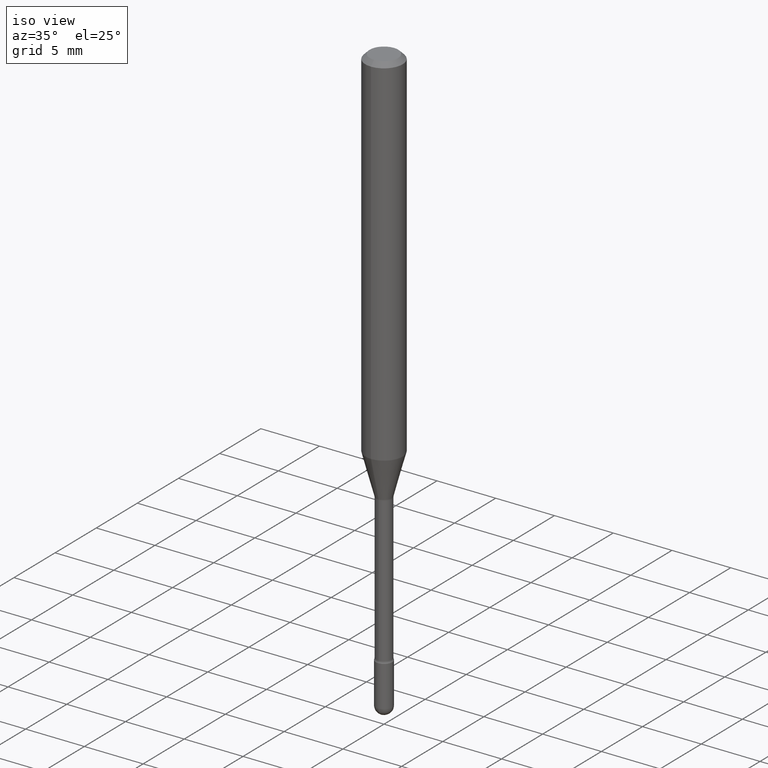
[diagram: clean part render]
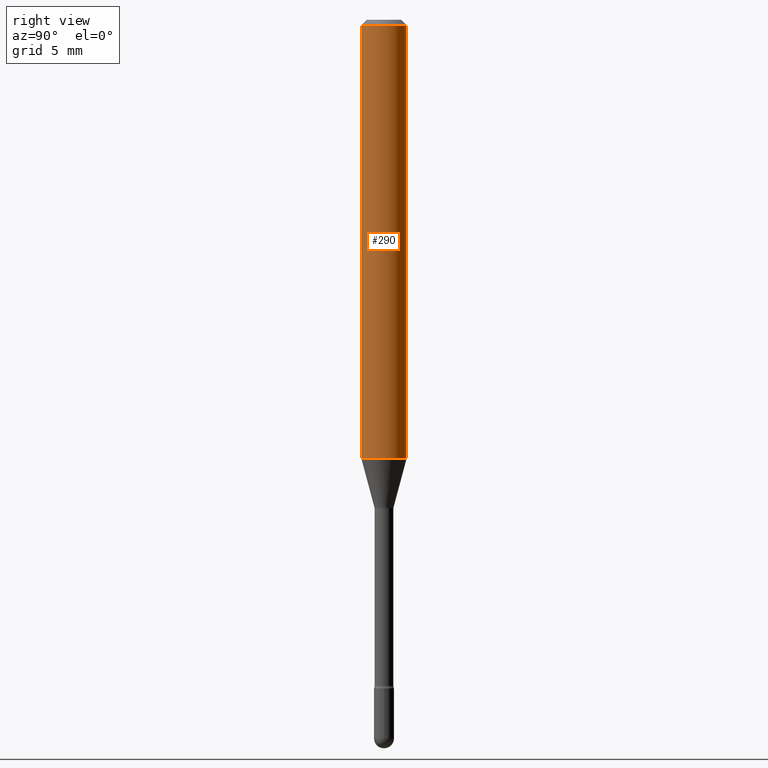
[diagram: tour spotlight — one face highlighted and labeled with its STEP entity id]
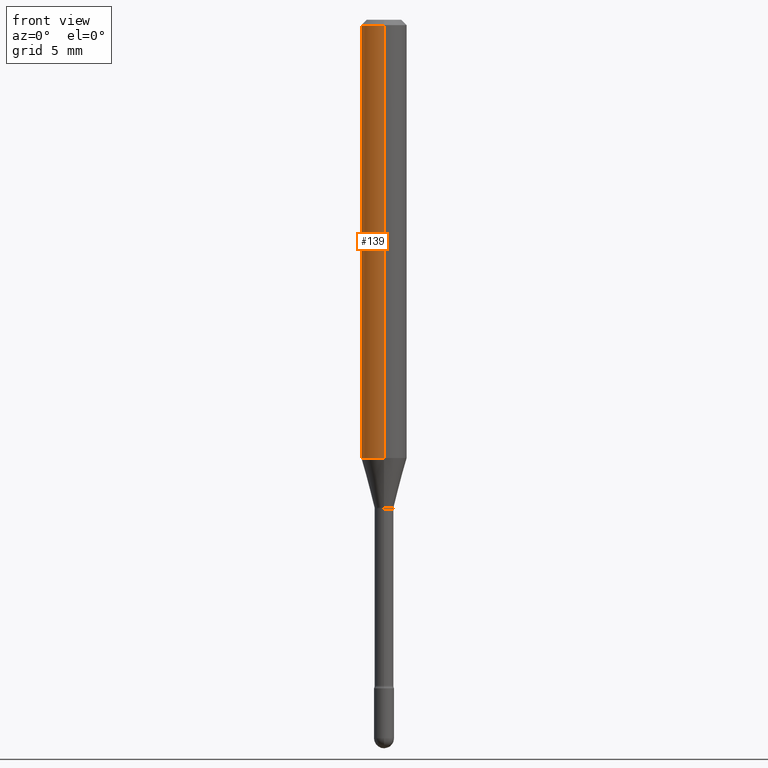
[diagram: tour spotlight — one face highlighted and labeled with its STEP entity id]
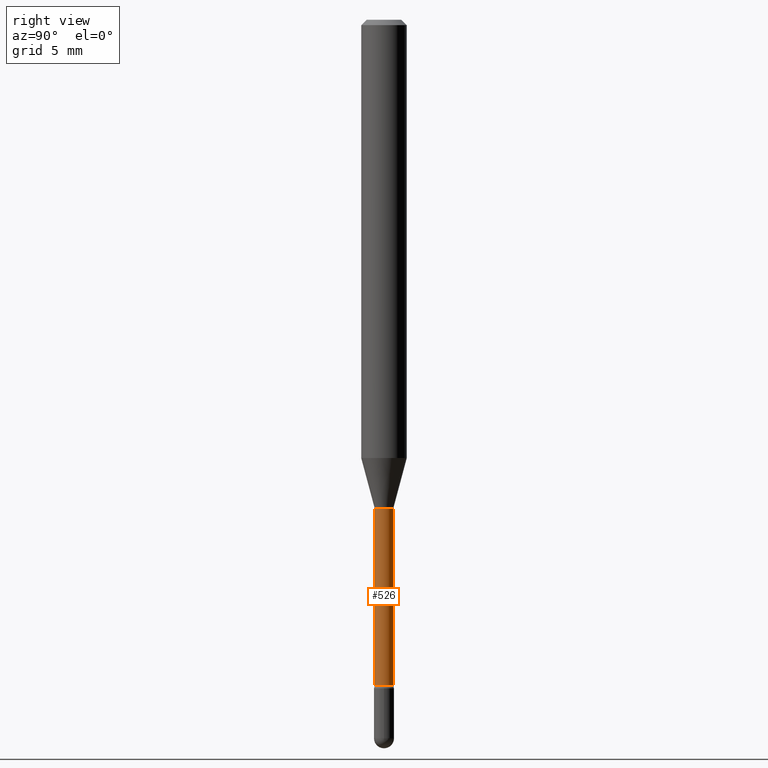
[diagram: tour spotlight — one face highlighted and labeled with its STEP entity id]
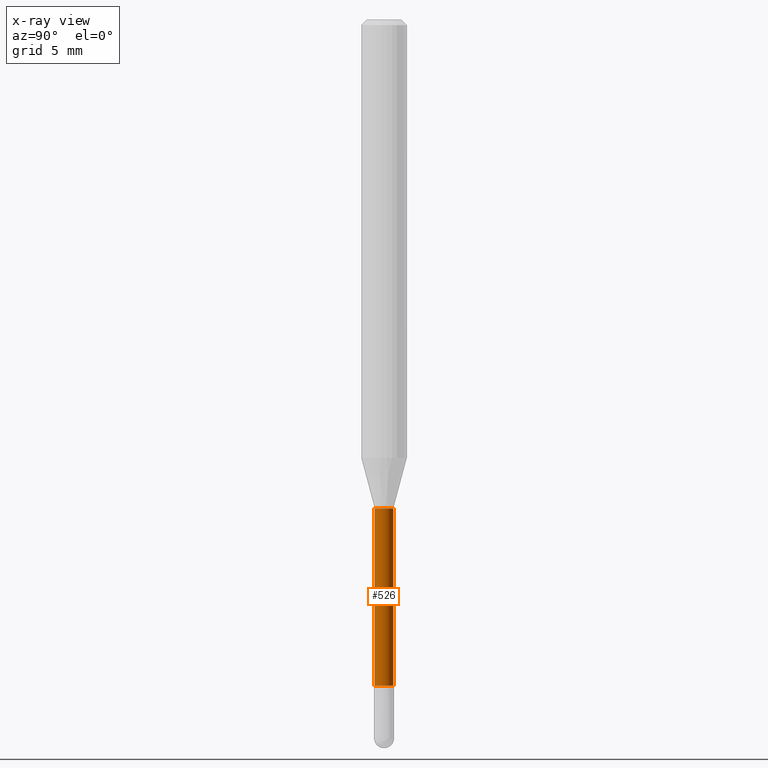
[diagram: x-ray of the same camera — body ghosted, this tour face saturated]
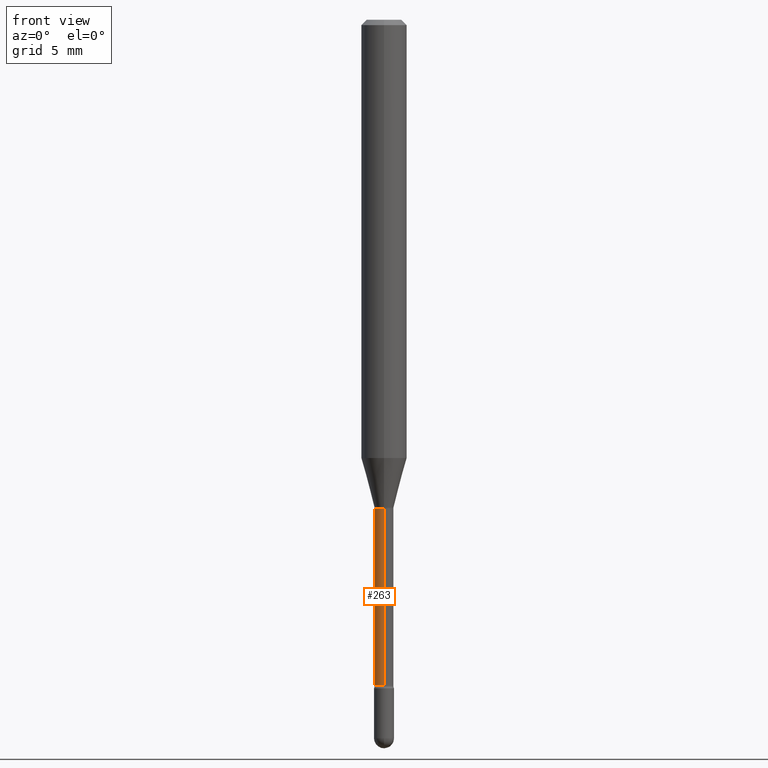
[diagram: tour spotlight — one face highlighted and labeled with its STEP entity id]
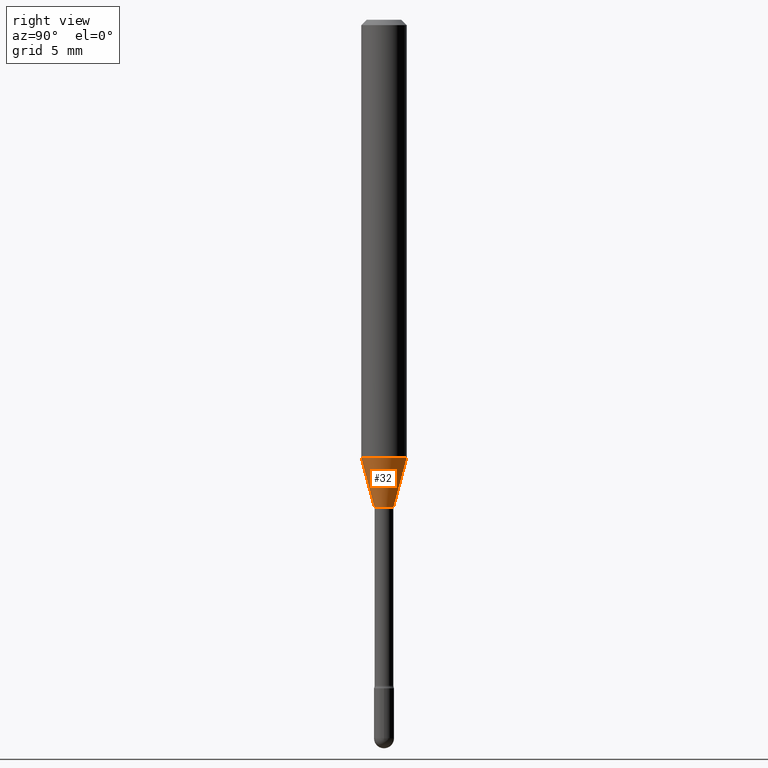
[diagram: tour spotlight — one face highlighted and labeled with its STEP entity id]
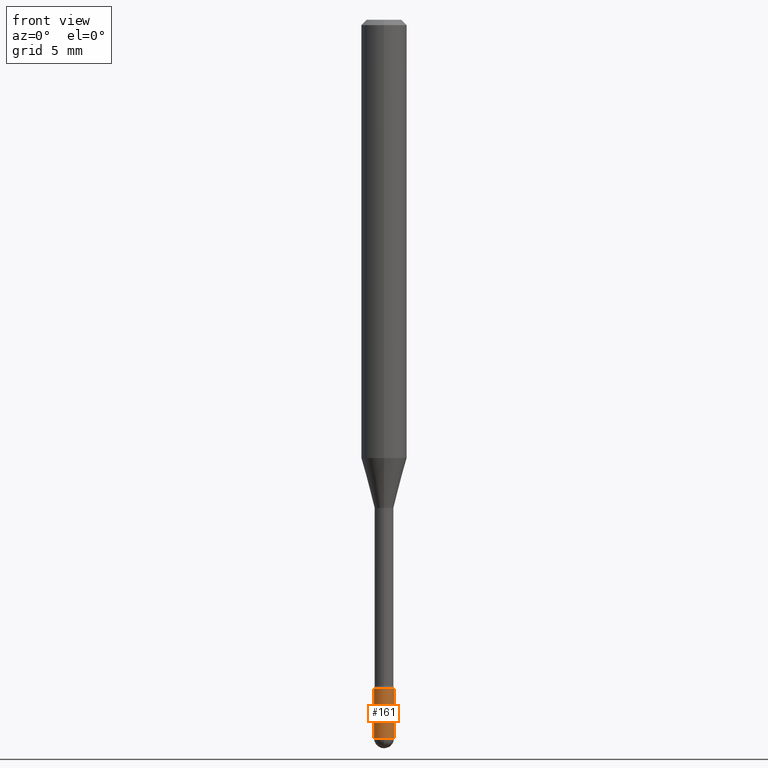
[diagram: tour spotlight — one face highlighted and labeled with its STEP entity id]
A machine part: a face-by-face anatomy tour. The part has 19 B-rep faces; the first image is the clean iso view, then the 6 largest visible faces are spotlighted one at a time (largest first), each with its STEP entity span.

Face 1 — right view, entity #290. In plain terms, the highlighted cylindrical surface (edge-blend (fillet) strip) has radius 1.5875 mm, axis along (-0, 0, 1).
Definition (entity closure, byte-faithful):
#4 = VECTOR ( 'NONE', #497, 39.37007874015748143 ) ;
#5 = AXIS2_PLACEMENT_3D ( 'NONE', #379, #328, #296 ) ;
#8 = EDGE_CURVE ( 'NONE', #546, #187, #37, .T. ) ;
#37 = CIRCLE ( 'NONE', #217, 0.06250000000000000000 ) ;
#39 = CIRCLE ( 'NONE', #5, 0.06250000000000000000 ) ;
#48 = DIRECTION ( 'NONE',  ( -2.445412732485141702E-29, 3.491561639573055049E-15, 1.000000000000000000 ) ) ;
#57 = EDGE_CURVE ( 'NONE', #123, #187, #171, .T. ) ;
#88 = CARTESIAN_POINT ( 'NONE',  ( -4.364351673553912750E-16, -0.06250000000000005551, -0.01499999999999986587 ) ) ;
#123 = VERTEX_POINT ( 'NONE', #551 ) ;
#125 = CYLINDRICAL_SURFACE ( 'NONE', #348, 0.06250000000000000000 ) ;
#170 = FACE_OUTER_BOUND ( 'NONE', #553, .T. ) ;
#171 = LINE ( 'NONE', #394, #226 ) ;
#173 = ORIENTED_EDGE ( 'NONE', *, *, #8, .F. ) ;
#187 = VERTEX_POINT ( 'NONE', #417 ) ;
#202 = CARTESIAN_POINT ( 'NONE',  ( -4.364351673553916201E-16, -0.06250000000000000000, 6.962960013645620531E-16 ) ) ;
#203 = EDGE_CURVE ( 'NONE', #557, #546, #320, .T. ) ;
#217 = AXIS2_PLACEMENT_3D ( 'NONE', #346, #48, #225 ) ;
#225 = DIRECTION ( 'NONE',  ( -6.982962677686265922E-15, -1.000000000000000000, 3.483106191921935554E-15 ) ) ;
#226 = VECTOR ( 'NONE', #350, 39.37007874015748143 ) ;
#270 = EDGE_CURVE ( 'NONE', #557, #123, #39, .T. ) ;
#290 = ADVANCED_FACE ( 'NONE', ( #170 ), #125, .T. ) ;
#292 = DIRECTION ( 'NONE',  ( -2.445412732485141702E-29, 3.491561639573055049E-15, 1.000000000000000000 ) ) ;
#296 = DIRECTION ( 'NONE',  ( -6.982962677686265922E-15, -1.000000000000000000, 4.370956789862821150E-15 ) ) ;
#320 = LINE ( 'NONE', #202, #4 ) ;
#324 = ORIENTED_EDGE ( 'NONE', *, *, #57, .T. ) ;
#328 = DIRECTION ( 'NONE',  ( -2.445412732485141702E-29, 3.491561639573055049E-15, 1.000000000000000000 ) ) ;
#346 = CARTESIAN_POINT ( 'NONE',  ( 3.668119098727732486E-31, -5.237342459359611244E-17, -0.01500000000000008271 ) ) ;
#348 = AXIS2_PLACEMENT_3D ( 'NONE', #424, #292, #561 ) ;
#350 = DIRECTION ( 'NONE',  ( -2.445412732485141982E-29, 3.491561639573055443E-15, 1.000000000000000000 ) ) ;
#379 = CARTESIAN_POINT ( 'NONE',  ( 2.942370334292095243E-29, -4.201117975774851019E-15, -1.203220337902600967 ) ) ;
#394 = CARTESIAN_POINT ( 'NONE',  ( 4.440892098500625669E-16, 0.06250000000000000000, 2.598507964179301227E-16 ) ) ;
#397 = ORIENTED_EDGE ( 'NONE', *, *, #203, .F. ) ;
#417 = CARTESIAN_POINT ( 'NONE',  ( 4.440892098500920998E-16, 0.06249999999999993755, -0.01500000000000030129 ) ) ;
#424 = CARTESIAN_POINT ( 'NONE',  ( -1.169113584055446105E-44, 1.669184350826100908E-30, 4.780733988912460139E-16 ) ) ;
#484 = CARTESIAN_POINT ( 'NONE',  ( -4.364351673553623336E-16, -0.06250000000000421885, -1.203220337902600745 ) ) ;
#497 = DIRECTION ( 'NONE',  ( -2.445412732485141982E-29, 3.491561639573055443E-15, 1.000000000000000000 ) ) ;
#540 = ORIENTED_EDGE ( 'NONE', *, *, #270, .T. ) ;
#546 = VERTEX_POINT ( 'NONE', #88 ) ;
#551 = CARTESIAN_POINT ( 'NONE',  ( 4.440892098500918040E-16, 0.06249999999999577421, -1.203220337902601189 ) ) ;
#553 = EDGE_LOOP ( 'NONE', ( #540, #324, #173, #397 ) ) ;
#557 = VERTEX_POINT ( 'NONE', #484 ) ;
#561 = DIRECTION ( 'NONE',  ( -6.982962677686265922E-15, -1.000000000000000000, 3.491561639573055443E-15 ) ) ;

Face 2 — front view, entity #139. In plain terms, the highlighted cylindrical surface (edge-blend (fillet) strip) has radius 1.5875 mm, axis along (-0, 0, 1).
Definition (entity closure, byte-faithful):
#4 = VECTOR ( 'NONE', #497, 39.37007874015748143 ) ;
#57 = EDGE_CURVE ( 'NONE', #123, #187, #171, .T. ) ;
#61 = DIRECTION ( 'NONE',  ( -2.445412732485141702E-29, 3.491561639573055049E-15, 1.000000000000000000 ) ) ;
#71 = CARTESIAN_POINT ( 'NONE',  ( 2.942370334292095243E-29, -4.201117975774851019E-15, -1.203220337902600967 ) ) ;
#88 = CARTESIAN_POINT ( 'NONE',  ( -4.364351673553912750E-16, -0.06250000000000005551, -0.01499999999999986587 ) ) ;
#115 = CYLINDRICAL_SURFACE ( 'NONE', #192, 0.06250000000000000000 ) ;
#123 = VERTEX_POINT ( 'NONE', #551 ) ;
#130 = CARTESIAN_POINT ( 'NONE',  ( 3.668119098727732486E-31, -5.237342459359611244E-17, -0.01500000000000008271 ) ) ;
#131 = EDGE_CURVE ( 'NONE', #123, #557, #548, .T. ) ;
#139 = ADVANCED_FACE ( 'NONE', ( #367 ), #115, .T. ) ;
#146 = ORIENTED_EDGE ( 'NONE', *, *, #131, .T. ) ;
#147 = DIRECTION ( 'NONE',  ( -2.445412732485141702E-29, 3.491561639573055049E-15, 1.000000000000000000 ) ) ;
#162 = DIRECTION ( 'NONE',  ( -6.982962677686265922E-15, -1.000000000000000000, 3.491561639573055443E-15 ) ) ;
#171 = LINE ( 'NONE', #394, #226 ) ;
#187 = VERTEX_POINT ( 'NONE', #417 ) ;
#192 = AXIS2_PLACEMENT_3D ( 'NONE', #361, #147, #162 ) ;
#198 = DIRECTION ( 'NONE',  ( -6.982962677686265922E-15, -1.000000000000000000, 4.370956789862821150E-15 ) ) ;
#202 = CARTESIAN_POINT ( 'NONE',  ( -4.364351673553916201E-16, -0.06250000000000000000, 6.962960013645620531E-16 ) ) ;
#203 = EDGE_CURVE ( 'NONE', #557, #546, #320, .T. ) ;
#204 = AXIS2_PLACEMENT_3D ( 'NONE', #71, #61, #198 ) ;
#219 = DIRECTION ( 'NONE',  ( -6.982962677686265922E-15, -1.000000000000000000, 3.483106191921935554E-15 ) ) ;
#226 = VECTOR ( 'NONE', #350, 39.37007874015748143 ) ;
#320 = LINE ( 'NONE', #202, #4 ) ;
#334 = EDGE_LOOP ( 'NONE', ( #393, #146, #565, #531 ) ) ;
#350 = DIRECTION ( 'NONE',  ( -2.445412732485141982E-29, 3.491561639573055443E-15, 1.000000000000000000 ) ) ;
#361 = CARTESIAN_POINT ( 'NONE',  ( -1.169113584055446105E-44, 1.669184350826100908E-30, 4.780733988912460139E-16 ) ) ;
#367 = FACE_OUTER_BOUND ( 'NONE', #334, .T. ) ;
#392 = DIRECTION ( 'NONE',  ( -2.445412732485141702E-29, 3.491561639573055049E-15, 1.000000000000000000 ) ) ;
#393 = ORIENTED_EDGE ( 'NONE', *, *, #57, .F. ) ;
#394 = CARTESIAN_POINT ( 'NONE',  ( 4.440892098500625669E-16, 0.06250000000000000000, 2.598507964179301227E-16 ) ) ;
#417 = CARTESIAN_POINT ( 'NONE',  ( 4.440892098500920998E-16, 0.06249999999999993755, -0.01500000000000030129 ) ) ;
#473 = CIRCLE ( 'NONE', #538, 0.06250000000000000000 ) ;
#484 = CARTESIAN_POINT ( 'NONE',  ( -4.364351673553623336E-16, -0.06250000000000421885, -1.203220337902600745 ) ) ;
#497 = DIRECTION ( 'NONE',  ( -2.445412732485141982E-29, 3.491561639573055443E-15, 1.000000000000000000 ) ) ;
#521 = EDGE_CURVE ( 'NONE', #187, #546, #473, .T. ) ;
#531 = ORIENTED_EDGE ( 'NONE', *, *, #521, .F. ) ;
#538 = AXIS2_PLACEMENT_3D ( 'NONE', #130, #392, #219 ) ;
#546 = VERTEX_POINT ( 'NONE', #88 ) ;
#548 = CIRCLE ( 'NONE', #204, 0.06250000000000000000 ) ;
#551 = CARTESIAN_POINT ( 'NONE',  ( 4.440892098500918040E-16, 0.06249999999999577421, -1.203220337902601189 ) ) ;
#557 = VERTEX_POINT ( 'NONE', #484 ) ;
#565 = ORIENTED_EDGE ( 'NONE', *, *, #203, .T. ) ;

Face 3 — right view, entity #526. An x-ray twin of the same camera follows (body ghosted, this face saturated) — the face is partly hidden behind the body. In plain terms, the highlighted cylindrical surface (edge-blend (fillet) strip) has radius 0.6566 mm, axis along (-0, 0, 1).
Definition (entity closure, byte-faithful):
#24 = EDGE_CURVE ( 'NONE', #423, #316, #556, .T. ) ;
#36 = DIRECTION ( 'NONE',  ( -2.445412732485141982E-29, 3.491561639573055443E-15, 1.000000000000000000 ) ) ;
#46 = AXIS2_PLACEMENT_3D ( 'NONE', #92, #136, #563 ) ;
#77 = AXIS2_PLACEMENT_3D ( 'NONE', #172, #116, #517 ) ;
#92 = CARTESIAN_POINT ( 'NONE',  ( -1.169113584055446105E-44, 1.669184350826100908E-30, 4.780733988912460139E-16 ) ) ;
#116 = DIRECTION ( 'NONE',  ( -2.445412732485141702E-29, 3.491561639573055049E-15, 1.000000000000000000 ) ) ;
#118 = CARTESIAN_POINT ( 'NONE',  ( 1.895372747640517446E-16, 0.02584999999999370787, -1.828160592130893436 ) ) ;
#132 = CARTESIAN_POINT ( 'NONE',  ( -1.805095852181571408E-16, -0.02585000000000468173, -1.341974787463811047 ) ) ;
#135 = CIRCLE ( 'NONE', #77, 0.02584999999999999451 ) ;
#136 = DIRECTION ( 'NONE',  ( -2.445412732485141702E-29, 3.491561639573055049E-15, 1.000000000000000000 ) ) ;
#172 = CARTESIAN_POINT ( 'NONE',  ( 3.281682231938045412E-29, -4.685587689182845120E-15, -1.341974787463811047 ) ) ;
#199 = ORIENTED_EDGE ( 'NONE', *, *, #341, .F. ) ;
#206 = CARTESIAN_POINT ( 'NONE',  ( 1.836752971939861795E-16, 0.02585000000000004308, 3.878165305082824008E-16 ) ) ;
#222 = CARTESIAN_POINT ( 'NONE',  ( 1.836752971940308241E-16, 0.02584999999999531423, -1.341974787463811047 ) ) ;
#223 = ORIENTED_EDGE ( 'NONE', *, *, #335, .F. ) ;
#247 = VECTOR ( 'NONE', #433, 39.37007874015748143 ) ;
#305 = DIRECTION ( 'NONE',  ( -2.445412732485141702E-29, 3.491561639573055049E-15, 1.000000000000000000 ) ) ;
#316 = VERTEX_POINT ( 'NONE', #118 ) ;
#330 = LINE ( 'NONE', #206, #247 ) ;
#335 = EDGE_CURVE ( 'NONE', #423, #564, #555, .T. ) ;
#341 = EDGE_CURVE ( 'NONE', #564, #496, #135, .T. ) ;
#381 = EDGE_CURVE ( 'NONE', #316, #496, #330, .T. ) ;
#388 = FACE_OUTER_BOUND ( 'NONE', #509, .T. ) ;
#395 = VECTOR ( 'NONE', #36, 39.37007874015748143 ) ;
#423 = VERTEX_POINT ( 'NONE', #554 ) ;
#433 = DIRECTION ( 'NONE',  ( -2.445412732485141982E-29, 3.491561639573055443E-15, 1.000000000000000000 ) ) ;
#436 = ORIENTED_EDGE ( 'NONE', *, *, #24, .T. ) ;
#479 = AXIS2_PLACEMENT_3D ( 'NONE', #518, #305, #529 ) ;
#496 = VERTEX_POINT ( 'NONE', #222 ) ;
#508 = CARTESIAN_POINT ( 'NONE',  ( -1.805095852181902483E-16, -0.02585000000000004308, 5.683302672742097257E-16 ) ) ;
#509 = EDGE_LOOP ( 'NONE', ( #436, #524, #199, #223 ) ) ;
#517 = DIRECTION ( 'NONE',  ( -6.982962677686266711E-15, -1.000000000000000000, 0.000000000000000000 ) ) ;
#518 = CARTESIAN_POINT ( 'NONE',  ( 4.470607189024462812E-29, -6.383135394463389067E-15, -1.828160592130893436 ) ) ;
#524 = ORIENTED_EDGE ( 'NONE', *, *, #381, .T. ) ;
#526 = ADVANCED_FACE ( 'NONE', ( #388 ), #530, .T. ) ;
#529 = DIRECTION ( 'NONE',  ( -6.982962677686265922E-15, -1.000000000000000000, 0.000000000000000000 ) ) ;
#530 = CYLINDRICAL_SURFACE ( 'NONE', #46, 0.02585000000000004308 ) ;
#554 = CARTESIAN_POINT ( 'NONE',  ( -1.805095852181458995E-16, -0.02585000000000647197, -1.828160592130893436 ) ) ;
#555 = LINE ( 'NONE', #508, #395 ) ;
#556 = CIRCLE ( 'NONE', #479, 0.02585000000000008819 ) ;
#563 = DIRECTION ( 'NONE',  ( -6.982962677686265133E-15, -1.000000000000000000, 3.491561639573056232E-15 ) ) ;
#564 = VERTEX_POINT ( 'NONE', #132 ) ;

Face 4 — front view, entity #263. In plain terms, the highlighted cylindrical surface (edge-blend (fillet) strip) has radius 0.6566 mm, axis along (-0, 0, 1).
Definition (entity closure, byte-faithful):
#7 = ORIENTED_EDGE ( 'NONE', *, *, #335, .T. ) ;
#17 = ORIENTED_EDGE ( 'NONE', *, *, #99, .T. ) ;
#34 = DIRECTION ( 'NONE',  ( -6.982962677686265133E-15, -1.000000000000000000, 3.491561639573056232E-15 ) ) ;
#35 = ORIENTED_EDGE ( 'NONE', *, *, #469, .F. ) ;
#36 = DIRECTION ( 'NONE',  ( -2.445412732485141982E-29, 3.491561639573055443E-15, 1.000000000000000000 ) ) ;
#90 = CIRCLE ( 'NONE', #312, 0.02585000000000008819 ) ;
#99 = EDGE_CURVE ( 'NONE', #316, #423, #90, .T. ) ;
#118 = CARTESIAN_POINT ( 'NONE',  ( 1.895372747640517446E-16, 0.02584999999999370787, -1.828160592130893436 ) ) ;
#132 = CARTESIAN_POINT ( 'NONE',  ( -1.805095852181571408E-16, -0.02585000000000468173, -1.341974787463811047 ) ) ;
#159 = AXIS2_PLACEMENT_3D ( 'NONE', #520, #440, #478 ) ;
#167 = CIRCLE ( 'NONE', #159, 0.02584999999999999451 ) ;
#206 = CARTESIAN_POINT ( 'NONE',  ( 1.836752971939861795E-16, 0.02585000000000004308, 3.878165305082824008E-16 ) ) ;
#222 = CARTESIAN_POINT ( 'NONE',  ( 1.836752971940308241E-16, 0.02584999999999531423, -1.341974787463811047 ) ) ;
#239 = DIRECTION ( 'NONE',  ( -6.982962677686265922E-15, -1.000000000000000000, 0.000000000000000000 ) ) ;
#247 = VECTOR ( 'NONE', #433, 39.37007874015748143 ) ;
#263 = ADVANCED_FACE ( 'NONE', ( #323 ), #506, .T. ) ;
#280 = ORIENTED_EDGE ( 'NONE', *, *, #381, .F. ) ;
#312 = AXIS2_PLACEMENT_3D ( 'NONE', #441, #370, #239 ) ;
#316 = VERTEX_POINT ( 'NONE', #118 ) ;
#323 = FACE_OUTER_BOUND ( 'NONE', #371, .T. ) ;
#330 = LINE ( 'NONE', #206, #247 ) ;
#335 = EDGE_CURVE ( 'NONE', #423, #564, #555, .T. ) ;
#336 = DIRECTION ( 'NONE',  ( -2.445412732485141702E-29, 3.491561639573055049E-15, 1.000000000000000000 ) ) ;
#370 = DIRECTION ( 'NONE',  ( -2.445412732485141702E-29, 3.491561639573055049E-15, 1.000000000000000000 ) ) ;
#371 = EDGE_LOOP ( 'NONE', ( #280, #17, #7, #35 ) ) ;
#381 = EDGE_CURVE ( 'NONE', #316, #496, #330, .T. ) ;
#395 = VECTOR ( 'NONE', #36, 39.37007874015748143 ) ;
#423 = VERTEX_POINT ( 'NONE', #554 ) ;
#433 = DIRECTION ( 'NONE',  ( -2.445412732485141982E-29, 3.491561639573055443E-15, 1.000000000000000000 ) ) ;
#440 = DIRECTION ( 'NONE',  ( -2.445412732485141702E-29, 3.491561639573055049E-15, 1.000000000000000000 ) ) ;
#441 = CARTESIAN_POINT ( 'NONE',  ( 4.470607189024462812E-29, -6.383135394463389067E-15, -1.828160592130893436 ) ) ;
#469 = EDGE_CURVE ( 'NONE', #496, #564, #167, .T. ) ;
#478 = DIRECTION ( 'NONE',  ( -6.982962677686266711E-15, -1.000000000000000000, 0.000000000000000000 ) ) ;
#496 = VERTEX_POINT ( 'NONE', #222 ) ;
#503 = AXIS2_PLACEMENT_3D ( 'NONE', #537, #336, #34 ) ;
#506 = CYLINDRICAL_SURFACE ( 'NONE', #503, 0.02585000000000004308 ) ;
#508 = CARTESIAN_POINT ( 'NONE',  ( -1.805095852181902483E-16, -0.02585000000000004308, 5.683302672742097257E-16 ) ) ;
#520 = CARTESIAN_POINT ( 'NONE',  ( 3.281682231938045412E-29, -4.685587689182845120E-15, -1.341974787463811047 ) ) ;
#537 = CARTESIAN_POINT ( 'NONE',  ( -1.169113584055446105E-44, 1.669184350826100908E-30, 4.780733988912460139E-16 ) ) ;
#554 = CARTESIAN_POINT ( 'NONE',  ( -1.805095852181458995E-16, -0.02585000000000647197, -1.828160592130893436 ) ) ;
#555 = LINE ( 'NONE', #508, #395 ) ;
#564 = VERTEX_POINT ( 'NONE', #132 ) ;

Face 5 — right view, entity #32. In plain terms, the highlighted conical surface has half-angle 15 deg.
Definition (entity closure, byte-faithful):
#5 = AXIS2_PLACEMENT_3D ( 'NONE', #379, #328, #296 ) ;
#12 = ORIENTED_EDGE ( 'NONE', *, *, #544, .F. ) ;
#32 = ADVANCED_FACE ( 'NONE', ( #126 ), #347, .T. ) ;
#33 = CARTESIAN_POINT ( 'NONE',  ( 3.272188441113494852E-29, -4.672032449440782681E-15, -1.338092501787272903 ) ) ;
#39 = CIRCLE ( 'NONE', #5, 0.06250000000000000000 ) ;
#40 = CARTESIAN_POINT ( 'NONE',  ( -1.840786654676037546E-16, -0.02636111260566864622, -1.338092501787272903 ) ) ;
#42 = DIRECTION ( 'NONE',  ( -6.982962677686265922E-15, -1.000000000000000000, 0.000000000000000000 ) ) ;
#53 = CARTESIAN_POINT ( 'NONE',  ( 1.873069706851181121E-16, 0.02636111260565929953, -1.338092501787272903 ) ) ;
#96 = VERTEX_POINT ( 'NONE', #142 ) ;
#121 = ORIENTED_EDGE ( 'NONE', *, *, #281, .T. ) ;
#123 = VERTEX_POINT ( 'NONE', #551 ) ;
#126 = FACE_OUTER_BOUND ( 'NONE', #269, .T. ) ;
#137 = DIRECTION ( 'NONE',  ( -2.445412732485141702E-29, 3.491561639573055049E-15, 1.000000000000000000 ) ) ;
#142 = CARTESIAN_POINT ( 'NONE',  ( 3.156980902676051676E-16, 0.02636111260565929953, -1.338092501787272903 ) ) ;
#177 = CIRCLE ( 'NONE', #254, 0.02636111260566397288 ) ;
#254 = AXIS2_PLACEMENT_3D ( 'NONE', #33, #558, #42 ) ;
#268 = LINE ( 'NONE', #53, #313 ) ;
#269 = EDGE_LOOP ( 'NONE', ( #121, #507, #352, #12 ) ) ;
#270 = EDGE_CURVE ( 'NONE', #557, #123, #39, .T. ) ;
#281 = EDGE_CURVE ( 'NONE', #327, #96, #177, .T. ) ;
#296 = DIRECTION ( 'NONE',  ( -6.982962677686265922E-15, -1.000000000000000000, 4.370956789862821150E-15 ) ) ;
#297 = DIRECTION ( 'NONE',  ( -6.982962677686265922E-15, -1.000000000000000000, 0.000000000000000000 ) ) ;
#301 = CARTESIAN_POINT ( 'NONE',  ( -1.840786654676037546E-16, -0.02636111260566864622, -1.338092501787272903 ) ) ;
#313 = VECTOR ( 'NONE', #446, 39.37007874015748143 ) ;
#327 = VERTEX_POINT ( 'NONE', #40 ) ;
#328 = DIRECTION ( 'NONE',  ( -2.445412732485141702E-29, 3.491561639573055049E-15, 1.000000000000000000 ) ) ;
#347 = CONICAL_SURFACE ( 'NONE', #513, 0.02636111260566397288, 0.2617993877991502960 ) ;
#352 = ORIENTED_EDGE ( 'NONE', *, *, #270, .F. ) ;
#379 = CARTESIAN_POINT ( 'NONE',  ( 2.942370334292095243E-29, -4.201117975774851019E-15, -1.203220337902600967 ) ) ;
#380 = CARTESIAN_POINT ( 'NONE',  ( 3.272188441113494852E-29, -4.672032449440782681E-15, -1.338092501787272903 ) ) ;
#434 = EDGE_CURVE ( 'NONE', #96, #123, #268, .T. ) ;
#442 = LINE ( 'NONE', #301, #549 ) ;
#446 = DIRECTION ( 'NONE',  ( 1.839019923739600315E-15, 0.2588190451025249583, 0.9659258262890670910 ) ) ;
#484 = CARTESIAN_POINT ( 'NONE',  ( -4.364351673553623336E-16, -0.06250000000000421885, -1.203220337902600745 ) ) ;
#507 = ORIENTED_EDGE ( 'NONE', *, *, #434, .T. ) ;
#513 = AXIS2_PLACEMENT_3D ( 'NONE', #380, #137, #297 ) ;
#523 = DIRECTION ( 'NONE',  ( -1.807323732225330139E-15, -0.2588190451025181860, 0.9659258262890689783 ) ) ;
#544 = EDGE_CURVE ( 'NONE', #327, #557, #442, .T. ) ;
#549 = VECTOR ( 'NONE', #523, 39.37007874015748143 ) ;
#551 = CARTESIAN_POINT ( 'NONE',  ( 4.440892098500918040E-16, 0.06249999999999577421, -1.203220337902601189 ) ) ;
#557 = VERTEX_POINT ( 'NONE', #484 ) ;
#558 = DIRECTION ( 'NONE',  ( -2.445412732485141702E-29, 3.491561639573055049E-15, 1.000000000000000000 ) ) ;

Face 6 — front view, entity #161. In plain terms, the highlighted cylindrical surface (edge-blend (fillet) strip) has radius 0.6985 mm, axis along (-0, 0, 1).
Definition (entity closure, byte-faithful):
#28 = ORIENTED_EDGE ( 'NONE', *, *, #248, .F. ) ;
#29 = CARTESIAN_POINT ( 'NONE',  ( -1.953992523339791111E-16, -0.02750000000000685924, -1.972499999999999698 ) ) ;
#30 = CIRCLE ( 'NONE', #119, 0.02750000000000000014 ) ;
#64 = EDGE_CURVE ( 'NONE', #197, #117, #30, .T. ) ;
#69 = DIRECTION ( 'NONE',  ( -2.445468806185136597E-29, 3.491481338843145583E-15, 1.000000000000000000 ) ) ;
#75 = DIRECTION ( 'NONE',  ( -2.445468806185136877E-29, 3.491481338843145188E-15, 1.000000000000000000 ) ) ;
#76 = AXIS2_PLACEMENT_3D ( 'NONE', #244, #158, #454 ) ;
#80 = CARTESIAN_POINT ( 'NONE',  ( 0.02750000000000000014, -1.920314736363723444E-16, 1.340948613343882413E-30 ) ) ;
#85 = DIRECTION ( 'NONE',  ( -2.445468806185136597E-29, 3.491481338843145583E-15, 1.000000000000000000 ) ) ;
#95 = VERTEX_POINT ( 'NONE', #188 ) ;
#98 = ORIENTED_EDGE ( 'NONE', *, *, #64, .T. ) ;
#100 = AXIS2_PLACEMENT_3D ( 'NONE', #356, #69, #458 ) ;
#113 = VECTOR ( 'NONE', #75, 39.37007874015748143 ) ;
#117 = VERTEX_POINT ( 'NONE', #404 ) ;
#119 = AXIS2_PLACEMENT_3D ( 'NONE', #264, #85, #255 ) ;
#122 = CARTESIAN_POINT ( 'NONE',  ( -0.02750000000000000014, 1.953992523340275521E-16, -1.352707149820099181E-30 ) ) ;
#124 = EDGE_CURVE ( 'NONE', #308, #197, #438, .T. ) ;
#158 = DIRECTION ( 'NONE',  ( -2.445468806185136597E-29, 3.491481338843145583E-15, 1.000000000000000000 ) ) ;
#161 = ADVANCED_FACE ( 'NONE', ( #282 ), #195, .T. ) ;
#168 = ORIENTED_EDGE ( 'NONE', *, *, #303, .T. ) ;
#185 = ORIENTED_EDGE ( 'NONE', *, *, #124, .T. ) ;
#188 = CARTESIAN_POINT ( 'NONE',  ( 0.02750000000000000014, -6.598899730413544603E-15, -1.834999999999999964 ) ) ;
#195 = CYLINDRICAL_SURFACE ( 'NONE', #76, 0.02750000000000000014 ) ;
#197 = VERTEX_POINT ( 'NONE', #29 ) ;
#207 = DIRECTION ( 'NONE',  ( -2.445468806185136877E-29, 3.491481338843145188E-15, 1.000000000000000000 ) ) ;
#235 = CARTESIAN_POINT ( 'NONE',  ( 4.823687220200181444E-29, -6.886946940868103736E-15, -1.972499999999999698 ) ) ;
#244 = CARTESIAN_POINT ( 'NONE',  ( 0.000000000000000000, 0.000000000000000000, 0.000000000000000000 ) ) ;
#248 = EDGE_CURVE ( 'NONE', #413, #95, #368, .T. ) ;
#255 = DIRECTION ( 'NONE',  ( 1.000000000000000000, -6.982962677686279332E-15, 0.000000000000000000 ) ) ;
#264 = CARTESIAN_POINT ( 'NONE',  ( 4.823687220200181444E-29, -6.886946940868103736E-15, -1.972499999999999698 ) ) ;
#274 = DIRECTION ( 'NONE',  ( 1.000000000000000000, -6.982962677686279332E-15, 0.000000000000000000 ) ) ;
#282 = FACE_OUTER_BOUND ( 'NONE', #525, .T. ) ;
#298 = CARTESIAN_POINT ( 'NONE',  ( -0.02750000000000000014, -6.451508346488609804E-15, -1.834999999999999964 ) ) ;
#303 = EDGE_CURVE ( 'NONE', #117, #95, #333, .T. ) ;
#308 = VERTEX_POINT ( 'NONE', #426 ) ;
#333 = LINE ( 'NONE', #80, #481 ) ;
#356 = CARTESIAN_POINT ( 'NONE',  ( 4.487435259349726059E-29, -6.406868256777172111E-15, -1.834999999999999964 ) ) ;
#366 = ORIENTED_EDGE ( 'NONE', *, *, #420, .F. ) ;
#368 = CIRCLE ( 'NONE', #100, 0.02750000000000000014 ) ;
#386 = AXIS2_PLACEMENT_3D ( 'NONE', #235, #409, #274 ) ;
#404 = CARTESIAN_POINT ( 'NONE',  ( 0.02750000000000000014, -6.838939072459010416E-15, -1.972499999999999698 ) ) ;
#409 = DIRECTION ( 'NONE',  ( -2.445468806185136597E-29, 3.491481338843145583E-15, 1.000000000000000000 ) ) ;
#413 = VERTEX_POINT ( 'NONE', #298 ) ;
#420 = EDGE_CURVE ( 'NONE', #308, #413, #515, .T. ) ;
#426 = CARTESIAN_POINT ( 'NONE',  ( -0.02750000000000000014, -6.451508346488609804E-15, -1.972499999999999698 ) ) ;
#438 = CIRCLE ( 'NONE', #386, 0.02750000000000000014 ) ;
#454 = DIRECTION ( 'NONE',  ( 1.000000000000000000, -6.982962677686266711E-15, 4.876176775795935793E-29 ) ) ;
#458 = DIRECTION ( 'NONE',  ( 1.000000000000000000, -6.982962677686279332E-15, 0.000000000000000000 ) ) ;
#481 = VECTOR ( 'NONE', #207, 39.37007874015748143 ) ;
#515 = LINE ( 'NONE', #122, #113 ) ;
#525 = EDGE_LOOP ( 'NONE', ( #366, #185, #98, #168, #28 ) ) ;